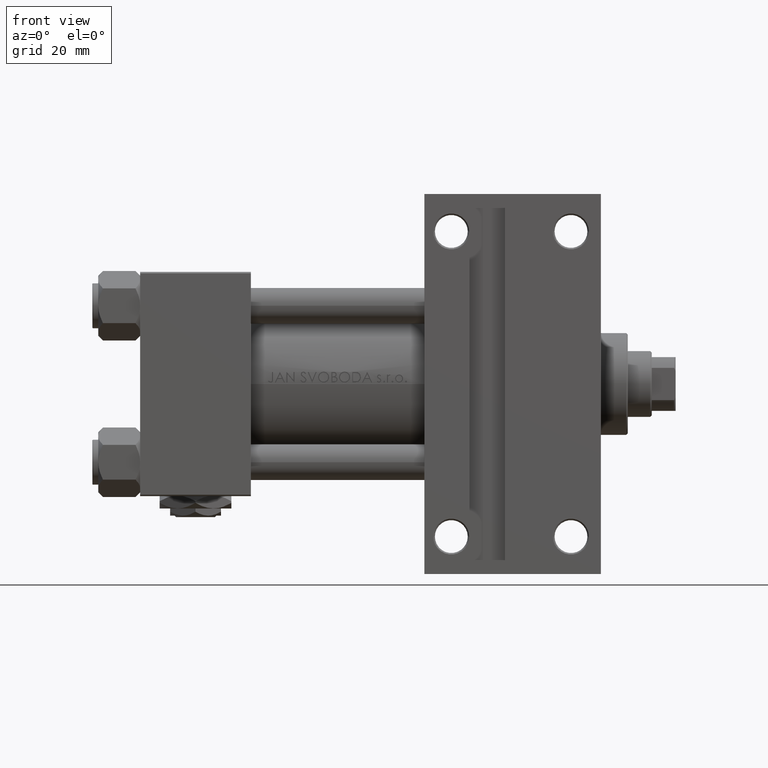
[diagram: clean part render]
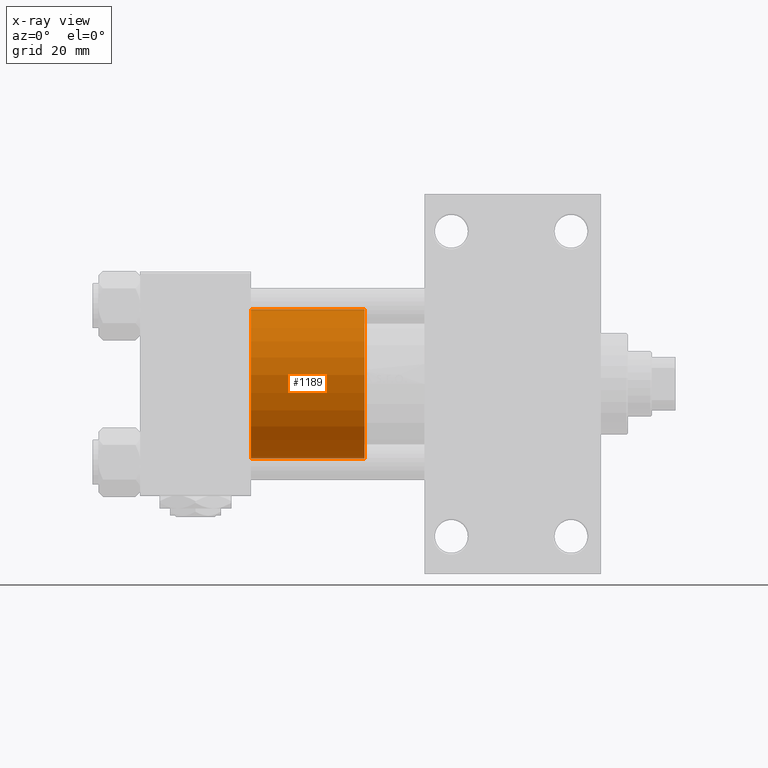
[diagram: x-ray — body ghosted, one internal face saturated and labeled with its STEP entity id]
A machine part, front view, then the same camera in x-ray: the body is ghosted and one INTERNAL B-rep face — a face not visible from any outside direction — is saturated and labeled: STEP entity #1189.
In plain terms, the highlighted cylindrical surface (partial cylindrical patch) has radius 25 mm, axis along (-1, 0, 0).
Its self-contained STEP definition (entity closure, byte-faithful):
#127 = DIRECTION ( 'NONE',  ( -0.000000000000000000, -0.000000000000000000, -1.000000000000000000 ) ) ;
#1189 = ADVANCED_FACE ( 'NONE', ( #30766 ), #22968, .T. ) ;
#2085 = EDGE_CURVE ( 'NONE', #31865, #32625, #42443, .T. ) ;
#3591 = LINE ( 'NONE', #30223, #22689 ) ;
#10380 = DIRECTION ( 'NONE',  ( -0.000000000000000000, -0.000000000000000000, -1.000000000000000000 ) ) ;
#11151 = CARTESIAN_POINT ( 'NONE',  ( 25.00000000000000000, 3.061616997868383043E-15, 38.00000000000000000 ) ) ;
#12920 = DIRECTION ( 'NONE',  ( 1.000000000000000000, 0.000000000000000000, 0.000000000000000000 ) ) ;
#17063 = CARTESIAN_POINT ( 'NONE',  ( 0.000000000000000000, 0.000000000000000000, 38.00000000000000000 ) ) ;
#18855 = ORIENTED_EDGE ( 'NONE', *, *, #39261, .T. ) ;
#18882 = VERTEX_POINT ( 'NONE', #33577 ) ;
#19198 = CARTESIAN_POINT ( 'NONE',  ( 0.000000000000000000, 0.000000000000000000, 38.00000000000000000 ) ) ;
#19486 = EDGE_LOOP ( 'NONE', ( #40402, #18855, #40212, #39881 ) ) ;
#20709 = CARTESIAN_POINT ( 'NONE',  ( 0.000000000000000000, 0.000000000000000000, 0.000000000000000000 ) ) ;
#21318 = DIRECTION ( 'NONE',  ( 1.000000000000000000, 0.000000000000000000, 0.000000000000000000 ) ) ;
#22422 = VECTOR ( 'NONE', #39332, 1000.000000000000000 ) ;
#22689 = VECTOR ( 'NONE', #10380, 1000.000000000000000 ) ;
#22968 = CYLINDRICAL_SURFACE ( 'NONE', #27199, 25.00000000000000000 ) ;
#24035 = CARTESIAN_POINT ( 'NONE',  ( -25.00000000000000000, 0.000000000000000000, 38.00000000000000000 ) ) ;
#25662 = AXIS2_PLACEMENT_3D ( 'NONE', #17063, #48204, #21318 ) ;
#27199 = AXIS2_PLACEMENT_3D ( 'NONE', #19198, #127, #49122 ) ;
#30223 = CARTESIAN_POINT ( 'NONE',  ( 25.00000000000000000, 3.061616997868383043E-15, 38.00000000000000000 ) ) ;
#30766 = FACE_OUTER_BOUND ( 'NONE', #19486, .T. ) ;
#31865 = VERTEX_POINT ( 'NONE', #11151 ) ;
#32516 = DIRECTION ( 'NONE',  ( 0.000000000000000000, 0.000000000000000000, 1.000000000000000000 ) ) ;
#32625 = VERTEX_POINT ( 'NONE', #42905 ) ;
#33010 = AXIS2_PLACEMENT_3D ( 'NONE', #20709, #32516, #12920 ) ;
#33577 = CARTESIAN_POINT ( 'NONE',  ( -25.00000000000000000, 0.000000000000000000, 0.000000000000000000 ) ) ;
#35573 = LINE ( 'NONE', #24035, #22422 ) ;
#39261 = EDGE_CURVE ( 'NONE', #31865, #46287, #3591, .T. ) ;
#39332 = DIRECTION ( 'NONE',  ( -0.000000000000000000, -0.000000000000000000, -1.000000000000000000 ) ) ;
#39881 = ORIENTED_EDGE ( 'NONE', *, *, #43532, .F. ) ;
#40122 = CARTESIAN_POINT ( 'NONE',  ( 25.00000000000000000, 3.061616997868383043E-15, 0.000000000000000000 ) ) ;
#40212 = ORIENTED_EDGE ( 'NONE', *, *, #47669, .T. ) ;
#40402 = ORIENTED_EDGE ( 'NONE', *, *, #2085, .F. ) ;
#42443 = CIRCLE ( 'NONE', #25662, 25.00000000000000000 ) ;
#42905 = CARTESIAN_POINT ( 'NONE',  ( -25.00000000000000000, 0.000000000000000000, 38.00000000000000000 ) ) ;
#43532 = EDGE_CURVE ( 'NONE', #32625, #18882, #35573, .T. ) ;
#45040 = CIRCLE ( 'NONE', #33010, 25.00000000000000000 ) ;
#46287 = VERTEX_POINT ( 'NONE', #40122 ) ;
#47669 = EDGE_CURVE ( 'NONE', #46287, #18882, #45040, .T. ) ;
#48204 = DIRECTION ( 'NONE',  ( 0.000000000000000000, 0.000000000000000000, 1.000000000000000000 ) ) ;
#49122 = DIRECTION ( 'NONE',  ( -1.000000000000000000, 0.000000000000000000, 0.000000000000000000 ) ) ;